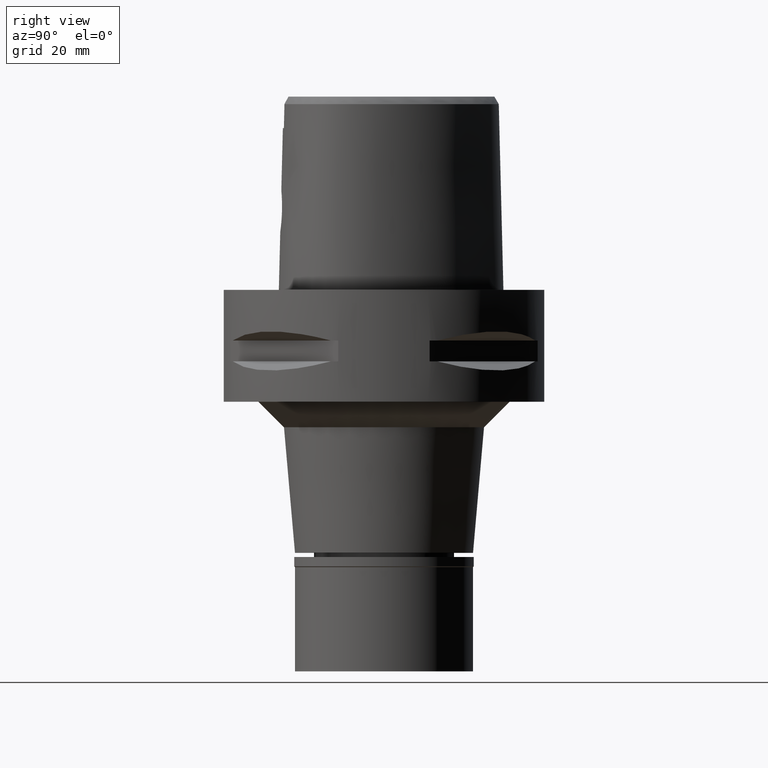
[diagram: clean part render]
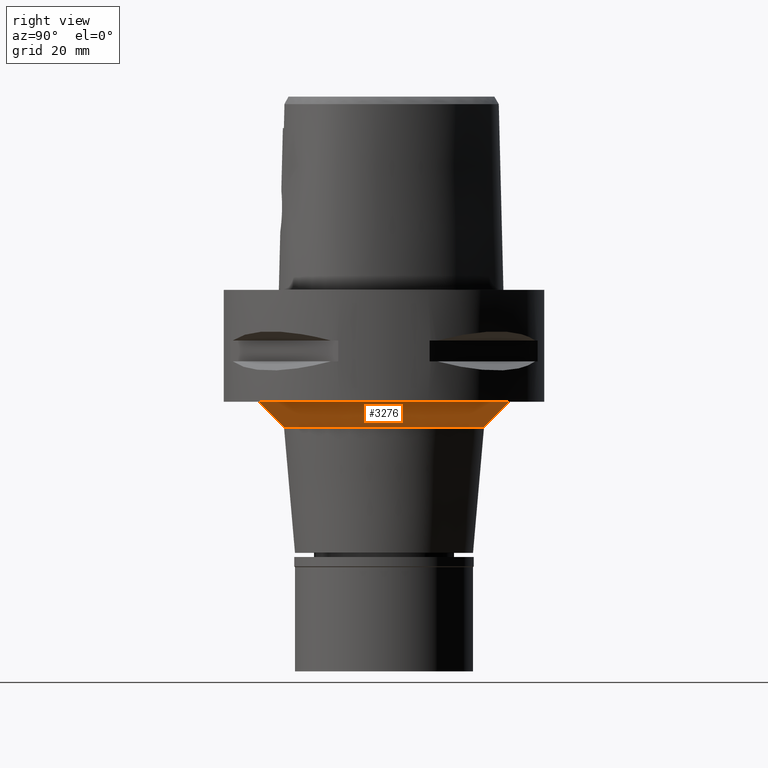
[diagram: same view with one face highlighted and labeled with its STEP entity id]
A machine part, right view. The second image highlights one B-rep face of the part: STEP entity #3276.
In plain terms, the highlighted conical surface has half-angle 45 deg.
Its self-contained STEP definition (entity closure, byte-faithful):
#134 = VERTEX_POINT ( 'NONE', #4239 ) ;
#545 = CARTESIAN_POINT ( 'NONE',  ( 0.0000000000000000000, 24.66096998908999893, -22.00000000000000000 ) ) ;
#583 = DIRECTION ( 'NONE',  ( 0.0000000000000000000, 0.0000000000000000000, 1.000000000000000000 ) ) ;
#645 = EDGE_CURVE ( 'NONE', #134, #3080, #1624, .T. ) ;
#650 = VERTEX_POINT ( 'NONE', #3390 ) ;
#686 = CARTESIAN_POINT ( 'NONE',  ( 0.0000000000000000000, 19.66096998909000249, -27.00000000000000000 ) ) ;
#825 = AXIS2_PLACEMENT_3D ( 'NONE', #2066, #583, #2898 ) ;
#841 = DIRECTION ( 'NONE',  ( 0.0000000000000000000, -0.7071067811863974706, -0.7071067811866975639 ) ) ;
#1069 = ORIENTED_EDGE ( 'NONE', *, *, #2905, .T. ) ;
#1624 = CIRCLE ( 'NONE', #2184, 19.66096998909999982 ) ;
#1828 = DIRECTION ( 'NONE',  ( 0.0000000000000000000, 0.0000000000000000000, 1.000000000000000000 ) ) ;
#1882 = CARTESIAN_POINT ( 'NONE',  ( 0.0000000000000000000, 0.0000000000000000000, -27.00000000000000000 ) ) ;
#1997 = VECTOR ( 'NONE', #841, 1000.000000000000114 ) ;
#2066 = CARTESIAN_POINT ( 'NONE',  ( 0.0000000000000000000, 0.0000000000000000000, -24.50000000000000000 ) ) ;
#2091 = FACE_OUTER_BOUND ( 'NONE', #2403, .T. ) ;
#2184 = AXIS2_PLACEMENT_3D ( 'NONE', #1882, #1828, #4055 ) ;
#2345 = LINE ( 'NONE', #4214, #4125 ) ;
#2403 = EDGE_LOOP ( 'NONE', ( #4441, #1069, #3510, #4764 ) ) ;
#2856 = CONICAL_SURFACE ( 'NONE', #825, 22.16096998908999893, 0.7853981633972997312 ) ;
#2866 = DIRECTION ( 'NONE',  ( 0.0000000000000000000, 1.000000000000000000, 0.0000000000000000000 ) ) ;
#2898 = DIRECTION ( 'NONE',  ( 0.0000000000000000000, 1.000000000000000000, 0.0000000000000000000 ) ) ;
#2900 = EDGE_CURVE ( 'NONE', #4570, #3080, #3874, .T. ) ;
#2905 = EDGE_CURVE ( 'NONE', #650, #134, #2345, .T. ) ;
#2978 = CARTESIAN_POINT ( 'NONE',  ( 0.0000000000000000000, 24.66096998908999893, -22.00000000000000000 ) ) ;
#3080 = VERTEX_POINT ( 'NONE', #686 ) ;
#3212 = EDGE_CURVE ( 'NONE', #4570, #650, #4675, .T. ) ;
#3276 = ADVANCED_FACE ( 'NONE', ( #2091 ), #2856, .T. ) ;
#3390 = CARTESIAN_POINT ( 'NONE',  ( 0.0000000000000000000, -24.66096998908999893, -22.00000000000000000 ) ) ;
#3510 = ORIENTED_EDGE ( 'NONE', *, *, #645, .T. ) ;
#3587 = CARTESIAN_POINT ( 'NONE',  ( 0.0000000000000000000, 0.0000000000000000000, -22.00000000000000000 ) ) ;
#3874 = LINE ( 'NONE', #545, #1997 ) ;
#4038 = DIRECTION ( 'NONE',  ( 0.0000000000000000000, 0.0000000000000000000, -1.000000000000000000 ) ) ;
#4055 = DIRECTION ( 'NONE',  ( 0.0000000000000000000, -1.000000000000000000, 0.0000000000000000000 ) ) ;
#4125 = VECTOR ( 'NONE', #4194, 1000.000000000000114 ) ;
#4194 = DIRECTION ( 'NONE',  ( 0.0000000000000000000, 0.7071067811863974706, -0.7071067811866975639 ) ) ;
#4214 = CARTESIAN_POINT ( 'NONE',  ( 0.0000000000000000000, -24.66096998908999893, -22.00000000000000000 ) ) ;
#4239 = CARTESIAN_POINT ( 'NONE',  ( 0.0000000000000000000, -19.66096998909000249, -27.00000000000000000 ) ) ;
#4441 = ORIENTED_EDGE ( 'NONE', *, *, #3212, .T. ) ;
#4570 = VERTEX_POINT ( 'NONE', #2978 ) ;
#4675 = CIRCLE ( 'NONE', #4834, 24.66096998908999893 ) ;
#4764 = ORIENTED_EDGE ( 'NONE', *, *, #2900, .F. ) ;
#4834 = AXIS2_PLACEMENT_3D ( 'NONE', #3587, #4038, #2866 ) ;